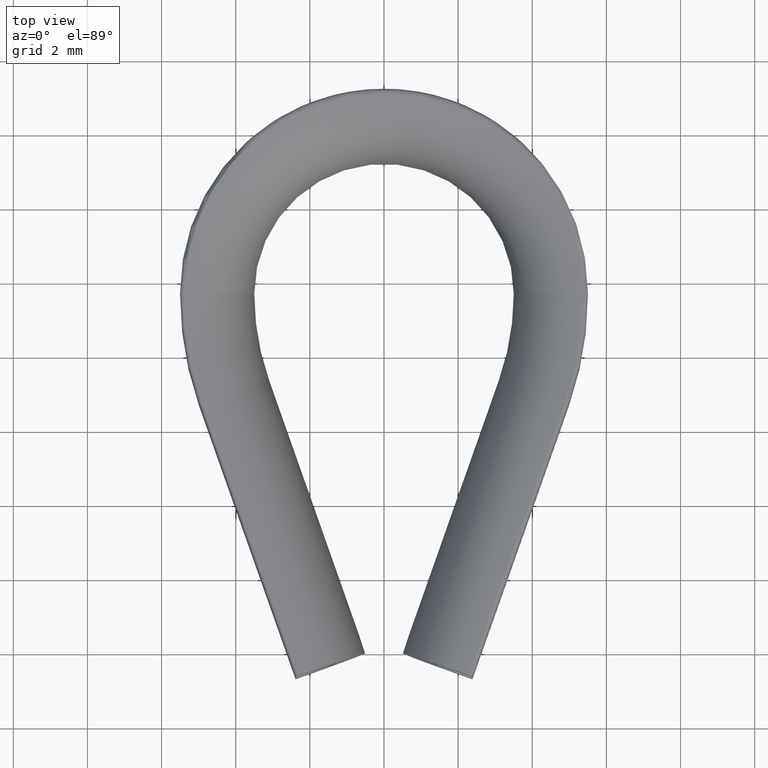
[diagram: clean part render]
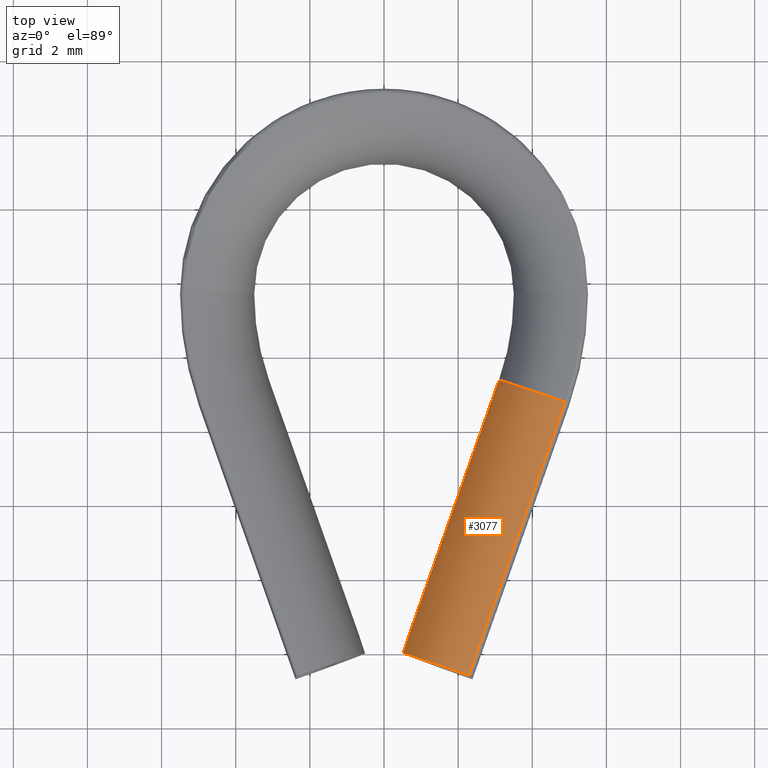
[diagram: same view with one face highlighted and labeled with its STEP entity id]
A machine part, top view. The second image highlights one B-rep face of the part: STEP entity #3077.
In plain terms, the highlighted cylindrical surface (partial cylindrical patch) has radius 2.05 mm, axis along (-0.3328, -0.943, 0).
Its self-contained STEP definition (entity closure, byte-faithful):
#237 = DIRECTION ( 'NONE',  ( 0.0000000000000000000, 0.0000000000000000000, -1.000000000000000000 ) ) ;
#586 = ORIENTED_EDGE ( 'NONE', *, *, #12208, .F. ) ;
#1424 = EDGE_CURVE ( 'NONE', #12659, #7628, #7964, .T. ) ;
#1791 = AXIS2_PLACEMENT_3D ( 'NONE', #13410, #12252, #2866 ) ;
#1881 = DIRECTION ( 'NONE',  ( 0.0000000000000000000, 0.0000000000000000000, -1.000000000000000000 ) ) ;
#1969 = VERTEX_POINT ( 'NONE', #10488 ) ;
#2199 = CIRCLE ( 'NONE', #5556, 2.050000000000000300 ) ;
#2320 = DIRECTION ( 'NONE',  ( 0.3327819343494357000, 0.9430038092026180600, -0.0000000000000000000 ) ) ;
#2551 = ORIENTED_EDGE ( 'NONE', *, *, #8680, .F. ) ;
#2631 = EDGE_CURVE ( 'NONE', #1969, #13327, #2199, .T. ) ;
#2866 = DIRECTION ( 'NONE',  ( 0.0000000000000000000, 0.0000000000000000000, -1.000000000000000000 ) ) ;
#2966 = CARTESIAN_POINT ( 'NONE',  ( 0.6764478208369160100, 0.4999999999999987200, 4.814824860968089600E-032 ) ) ;
#3077 = ADVANCED_FACE ( 'NONE', ( #6419 ), #5504, .T. ) ;
#3118 = DIRECTION ( 'NONE',  ( -0.3327819343494358200, -0.9430038092026182800, 0.0000000000000000000 ) ) ;
#3119 = CARTESIAN_POINT ( 'NONE',  ( 5.034184473283693800, 6.688323494137608600, 0.0000000000000000000 ) ) ;
#3158 = CIRCLE ( 'NONE', #9241, 2.050000000000000300 ) ;
#3240 = CARTESIAN_POINT ( 'NONE',  ( 4.885480026450629500, 6.740800645322515500, 2.043925912575236500 ) ) ;
#3529 = CARTESIAN_POINT ( 'NONE',  ( 4.885480026447164700, 6.740800645323738600, -2.043925912574666700 ) ) ;
#3824 = DIRECTION ( 'NONE',  ( -0.3327819343494358200, -0.9430038092026181700, 0.0000000000000000000 ) ) ;
#3969 = DIRECTION ( 'NONE',  ( -0.3327819343494358200, -0.9430038092026181700, 0.0000000000000000000 ) ) ;
#3975 = EDGE_LOOP ( 'NONE', ( #586, #8178, #6834, #6460, #5197, #7265, #4985, #2551 ) ) ;
#4023 = CARTESIAN_POINT ( 'NONE',  ( 2.433157808865367100, -0.6822029654163421800, 0.0000000000000000000 ) ) ;
#4480 =( BOUNDED_CURVE ( )  B_SPLINE_CURVE ( 3, ( #12270, #13432, #11042, #9803 ),
 .UNSPECIFIED., .F., .F. ) 
 B_SPLINE_CURVE_WITH_KNOTS ( ( 4, 4 ),
 ( 4.854186687855037300, 4.959806999710927800 ),
 .UNSPECIFIED. ) 
 CURVE ( )  GEOMETRIC_REPRESENTATION_ITEM ( )  RATIONAL_B_SPLINE_CURVE ( ( 1.000000000000000000, 0.9990705785133520100, 0.9990705785133520100, 1.000000000000000000 ) ) 
 REPRESENTATION_ITEM ( '' )  );
#4985 = ORIENTED_EDGE ( 'NONE', *, *, #1424, .F. ) ;
#5197 = ORIENTED_EDGE ( 'NONE', *, *, #2631, .T. ) ;
#5358 = CARTESIAN_POINT ( 'NONE',  ( 0.5107727958387363600, -0.003801672700130950500, -0.2161192905123801300 ) ) ;
#5452 = CARTESIAN_POINT ( 'NONE',  ( 0.5107727958387363600, -0.003801672700130950500, 0.2161192905123801300 ) ) ;
#5504 = CYLINDRICAL_SURFACE ( 'NONE', #12573, 2.050000000000000700 ) ;
#5556 = AXIS2_PLACEMENT_3D ( 'NONE', #6242, #3824, #237 ) ;
#5678 = LINE ( 'NONE', #12894, #11758 ) ;
#5746 = DIRECTION ( 'NONE',  ( 0.9430038092026180600, -0.3327819343494359800, 0.0000000000000000000 ) ) ;
#5886 = CARTESIAN_POINT ( 'NONE',  ( 4.885480026447899200, 6.740800645323480100, -2.043925912574786600 ) ) ;
#6242 = CARTESIAN_POINT ( 'NONE',  ( 5.034184473283693800, 6.688323494137608600, 0.0000000000000000000 ) ) ;
#6419 = FACE_OUTER_BOUND ( 'NONE', #3975, .T. ) ;
#6460 = ORIENTED_EDGE ( 'NONE', *, *, #14118, .T. ) ;
#6698 = EDGE_CURVE ( 'NONE', #12427, #8402, #3158, .T. ) ;
#6834 = ORIENTED_EDGE ( 'NONE', *, *, #7259, .T. ) ;
#6868 = DIRECTION ( 'NONE',  ( -0.3327819343494357000, -0.9430038092026180600, 0.0000000000000000000 ) ) ;
#7166 = VERTEX_POINT ( 'NONE', #12685 ) ;
#7227 = CARTESIAN_POINT ( 'NONE',  ( 2.284453362029572600, -0.6297258142304705800, 2.043925912574787100 ) ) ;
#7259 = EDGE_CURVE ( 'NONE', #12427, #10393, #5678, .T. ) ;
#7265 = ORIENTED_EDGE ( 'NONE', *, *, #7319, .T. ) ;
#7319 = EDGE_CURVE ( 'NONE', #13327, #7628, #7496, .T. ) ;
#7496 = LINE ( 'NONE', #5886, #8248 ) ;
#7517 = DIRECTION ( 'NONE',  ( 0.0000000000000000000, 0.0000000000000000000, -1.000000000000000000 ) ) ;
#7601 = CARTESIAN_POINT ( 'NONE',  ( 0.5107727958387363600, -0.003801672700130950500, 0.2161192905123801300 ) ) ;
#7628 = VERTEX_POINT ( 'NONE', #7646 ) ;
#7646 = CARTESIAN_POINT ( 'NONE',  ( 2.284453362029573100, -0.6297258142304708000, -2.043925912574787100 ) ) ;
#7763 = DIRECTION ( 'NONE',  ( -0.3327819343494358200, -0.9430038092026181700, 0.0000000000000000000 ) ) ;
#7964 = CIRCLE ( 'NONE', #1791, 2.050000000000000300 ) ;
#8178 = ORIENTED_EDGE ( 'NONE', *, *, #6698, .F. ) ;
#8248 = VECTOR ( 'NONE', #6868, 1000.000000000000200 ) ;
#8402 = VERTEX_POINT ( 'NONE', #5452 ) ;
#8680 = EDGE_CURVE ( 'NONE', #7166, #12659, #4480, .T. ) ;
#8997 = CARTESIAN_POINT ( 'NONE',  ( 5.034184473283693800, 6.688323494137608600, 0.0000000000000000000 ) ) ;
#9241 = AXIS2_PLACEMENT_3D ( 'NONE', #4023, #3969, #7517 ) ;
#9803 = CARTESIAN_POINT ( 'NONE',  ( 0.5107727958387363600, -0.003801672700130950500, -0.2161192905123801300 ) ) ;
#10393 = VERTEX_POINT ( 'NONE', #3240 ) ;
#10488 = CARTESIAN_POINT ( 'NONE',  ( 3.101026664418327100, 7.370526459553952100, 2.510525938252074200E-016 ) ) ;
#10851 = CIRCLE ( 'NONE', #13861, 2.050000000000000300 ) ;
#11042 = CARTESIAN_POINT ( 'NONE',  ( 0.5617703546191834500, 0.1635850980590410300, -0.1443142289218782600 ) ) ;
#11545 =( BOUNDED_CURVE ( )  B_SPLINE_CURVE ( 3, ( #7601, #13407, #12355, #2966 ),
 .UNSPECIFIED., .F., .F. ) 
 B_SPLINE_CURVE_WITH_KNOTS ( ( 4, 4 ),
 ( 1.323378307468658700, 1.428998619324549200 ),
 .UNSPECIFIED. ) 
 CURVE ( )  GEOMETRIC_REPRESENTATION_ITEM ( )  RATIONAL_B_SPLINE_CURVE ( ( 1.000000000000000000, 0.9990705785133520100, 0.9990705785133520100, 1.000000000000000000 ) ) 
 REPRESENTATION_ITEM ( '' )  );
#11758 = VECTOR ( 'NONE', #2320, 1000.000000000000200 ) ;
#12208 = EDGE_CURVE ( 'NONE', #8402, #7166, #11545, .T. ) ;
#12252 = DIRECTION ( 'NONE',  ( -0.3327819343494358200, -0.9430038092026181700, 0.0000000000000000000 ) ) ;
#12270 = CARTESIAN_POINT ( 'NONE',  ( 0.6764478208369160100, 0.4999999999999987200, 4.814824860968089600E-032 ) ) ;
#12355 = CARTESIAN_POINT ( 'NONE',  ( 0.6170467380103401600, 0.3316752155259519700, 0.07220744782606772200 ) ) ;
#12427 = VERTEX_POINT ( 'NONE', #7227 ) ;
#12573 = AXIS2_PLACEMENT_3D ( 'NONE', #8997, #3118, #5746 ) ;
#12659 = VERTEX_POINT ( 'NONE', #5358 ) ;
#12685 = CARTESIAN_POINT ( 'NONE',  ( 0.6764478208369160100, 0.4999999999999987200, 4.814824860968089600E-032 ) ) ;
#12894 = CARTESIAN_POINT ( 'NONE',  ( 4.885480026447899200, 6.740800645323480100, 2.043925912574786600 ) ) ;
#13327 = VERTEX_POINT ( 'NONE', #3529 ) ;
#13407 = CARTESIAN_POINT ( 'NONE',  ( 0.5617703546191834500, 0.1635850980590408100, 0.1443142289218783700 ) ) ;
#13410 = CARTESIAN_POINT ( 'NONE',  ( 2.433157808865367100, -0.6822029654163421800, 0.0000000000000000000 ) ) ;
#13432 = CARTESIAN_POINT ( 'NONE',  ( 0.6170467380103401600, 0.3316752155259520800, -0.07220744782606766700 ) ) ;
#13861 = AXIS2_PLACEMENT_3D ( 'NONE', #3119, #7763, #1881 ) ;
#14118 = EDGE_CURVE ( 'NONE', #10393, #1969, #10851, .T. ) ;